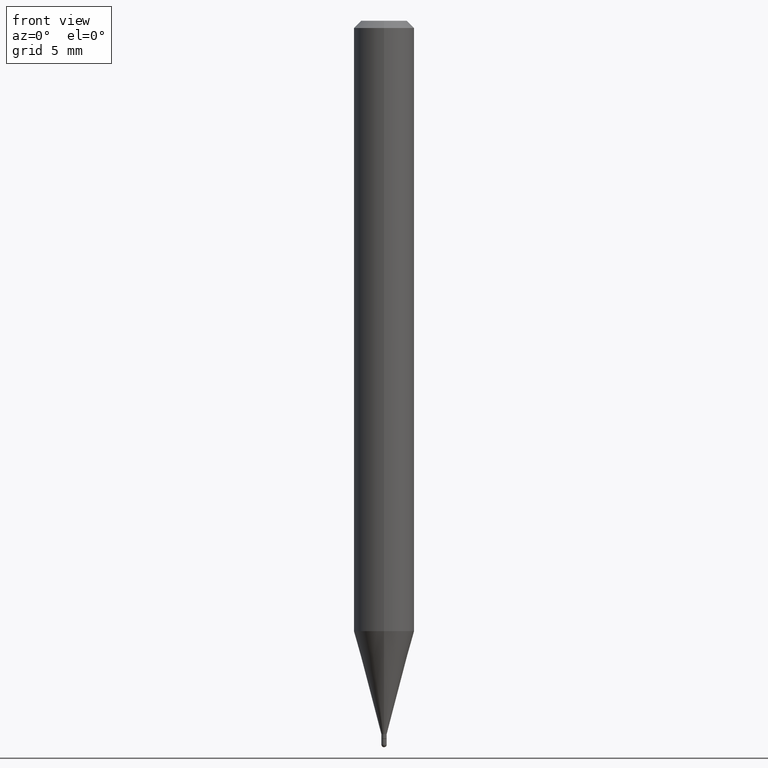
[diagram: clean part render]
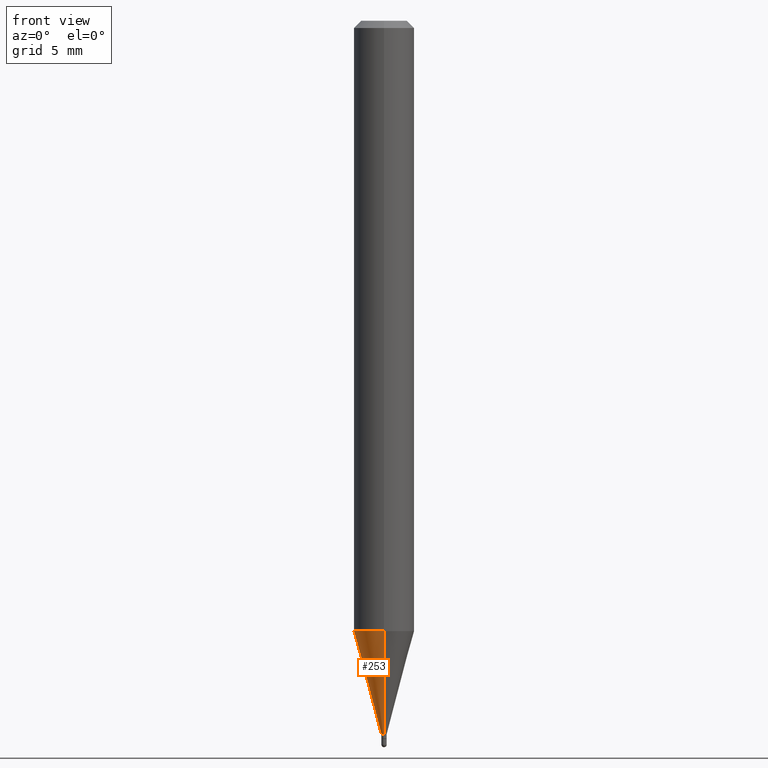
[diagram: same view with one face highlighted and labeled with its STEP entity id]
A machine part, front view. The second image highlights one B-rep face of the part: STEP entity #253.
In plain terms, the highlighted conical surface has half-angle 15 deg.
Its self-contained STEP definition (entity closure, byte-faithful):
#4 = CARTESIAN_POINT ( 'NONE',  ( -4.364351673553608052E-16, -0.06250000000000439926, -1.260273103968574393 ) ) ;
#6 = VECTOR ( 'NONE', #164, 39.37007874015748143 ) ;
#34 = VERTEX_POINT ( 'NONE', #400 ) ;
#35 = CIRCLE ( 'NONE', #273, 0.005499999999999922486 ) ;
#56 = CARTESIAN_POINT ( 'NONE',  ( -3.840629472723789408E-17, -0.005500000000005065073, -1.473000000000000087 ) ) ;
#65 = DIRECTION ( 'NONE',  ( -6.982962677686265922E-15, -1.000000000000000000, 0.000000000000000000 ) ) ;
#118 = DIRECTION ( 'NONE',  ( -2.445481527053186331E-29, 3.491463121836071755E-15, 1.000000000000000000 ) ) ;
#137 = DIRECTION ( 'NONE',  ( 1.839019923739600315E-15, 0.2588190451025249583, 0.9659258262890670910 ) ) ;
#142 = CARTESIAN_POINT ( 'NONE',  ( 3.907985046684097588E-17, 0.005499999999994779898, -1.473000000000000087 ) ) ;
#146 = DIRECTION ( 'NONE',  ( -2.445481527053186331E-29, 3.491463121836071755E-15, 1.000000000000000000 ) ) ;
#152 = ORIENTED_EDGE ( 'NONE', *, *, #307, .T. ) ;
#160 = VERTEX_POINT ( 'NONE', #4 ) ;
#164 = DIRECTION ( 'NONE',  ( -1.807323732225330139E-15, -0.2588190451025181860, 0.9659258262890689783 ) ) ;
#174 = EDGE_LOOP ( 'NONE', ( #346, #177, #152, #444 ) ) ;
#177 = ORIENTED_EDGE ( 'NONE', *, *, #302, .T. ) ;
#229 = CARTESIAN_POINT ( 'NONE',  ( 2.415845301584673113E-16, 0.005499999999994779898, -1.473000000000000087 ) ) ;
#234 = VERTEX_POINT ( 'NONE', #229 ) ;
#235 = CARTESIAN_POINT ( 'NONE',  ( -3.840629472723789408E-17, -0.005500000000005065073, -1.473000000000000087 ) ) ;
#237 = CARTESIAN_POINT ( 'NONE',  ( 3.081974594797129006E-29, -4.400197065948155318E-15, -1.260273103968574615 ) ) ;
#247 = AXIS2_PLACEMENT_3D ( 'NONE', #237, #391, #500 ) ;
#253 = ADVANCED_FACE ( 'NONE', ( #316 ), #315, .T. ) ;
#261 = EDGE_CURVE ( 'NONE', #34, #160, #306, .T. ) ;
#265 = DIRECTION ( 'NONE',  ( -6.982962677686265922E-15, -1.000000000000000000, 0.000000000000000000 ) ) ;
#273 = AXIS2_PLACEMENT_3D ( 'NONE', #485, #146, #265 ) ;
#302 = EDGE_CURVE ( 'NONE', #234, #433, #35, .T. ) ;
#301 = AXIS2_PLACEMENT_3D ( 'NONE', #465, #118, #65 ) ;
#306 = CIRCLE ( 'NONE', #247, 0.06250000000000000000 ) ;
#307 = EDGE_CURVE ( 'NONE', #433, #160, #418, .T. ) ;
#315 = CONICAL_SURFACE ( 'NONE', #301, 0.005499999999999922486, 0.2617993877991502960 ) ;
#316 = FACE_OUTER_BOUND ( 'NONE', #174, .T. ) ;
#346 = ORIENTED_EDGE ( 'NONE', *, *, #357, .F. ) ;
#357 = EDGE_CURVE ( 'NONE', #234, #34, #447, .T. ) ;
#391 = DIRECTION ( 'NONE',  ( -2.445481527053186331E-29, 3.491463121836071755E-15, 1.000000000000000000 ) ) ;
#400 = CARTESIAN_POINT ( 'NONE',  ( 4.440892098500932831E-16, 0.06249999999999558686, -1.260273103968574837 ) ) ;
#418 = LINE ( 'NONE', #235, #6 ) ;
#426 = VECTOR ( 'NONE', #137, 39.37007874015748143 ) ;
#433 = VERTEX_POINT ( 'NONE', #56 ) ;
#444 = ORIENTED_EDGE ( 'NONE', *, *, #261, .F. ) ;
#447 = LINE ( 'NONE', #142, #426 ) ;
#465 = CARTESIAN_POINT ( 'NONE',  ( 3.602194289349343960E-29, -5.142925178464533732E-15, -1.473000000000000087 ) ) ;
#485 = CARTESIAN_POINT ( 'NONE',  ( 3.602194289349343960E-29, -5.142925178464533732E-15, -1.473000000000000087 ) ) ;
#500 = DIRECTION ( 'NONE',  ( -6.982962677686265922E-15, -1.000000000000000000, 4.370956789862821150E-15 ) ) ;